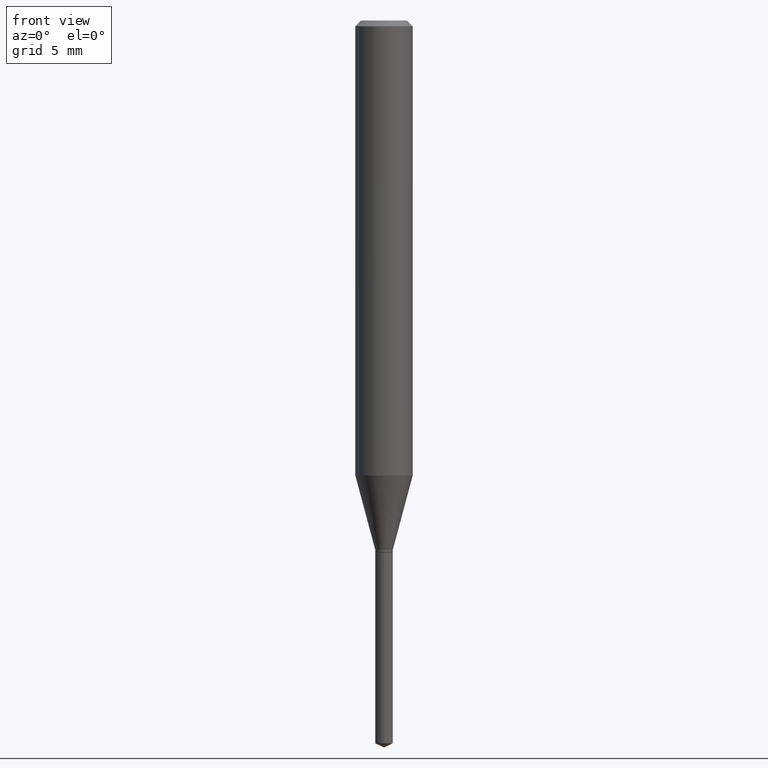
[diagram: clean part render]
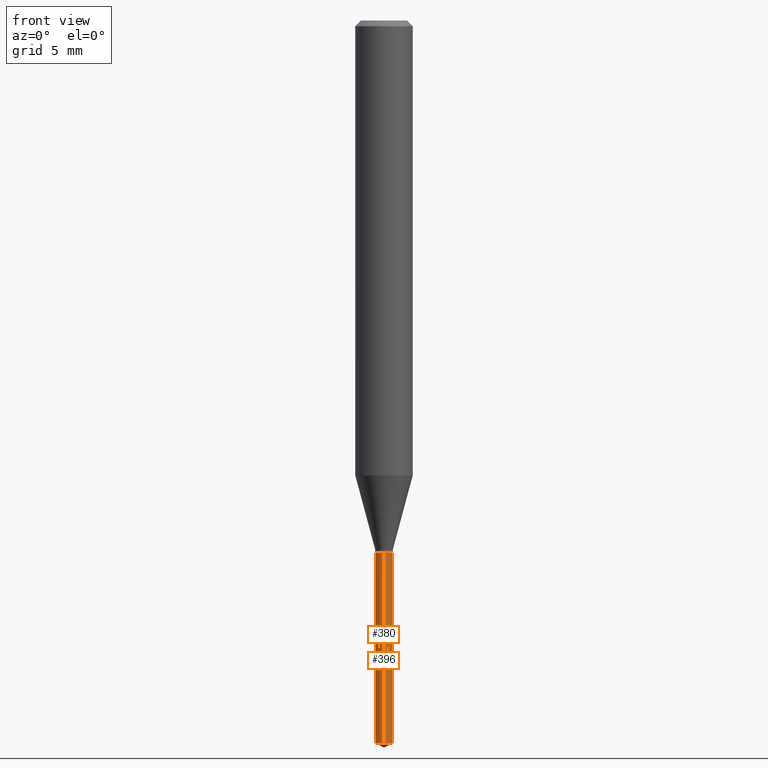
[diagram: same view with one multi-face feature highlighted, each face labeled with its STEP entity id]
A machine part, front view. The highlighted faces form ONE feature: a constant-radius fillet chain: 2 tangent blend faces with common blend radius 0.4597 mm. The faces share edges in the B-rep.
Their STEP definitions:
[1] entity #396 (Cylinder):
#3 = CIRCLE ( 'NONE', #331, 0.01810000000000000150 ) ;
#12 = VERTEX_POINT ( 'NONE', #414 ) ;
#13 = VERTEX_POINT ( 'NONE', #89 ) ;
#21 = ORIENTED_EDGE ( 'NONE', *, *, #409, .F. ) ;
#28 = DIRECTION ( 'NONE',  ( -2.445460715294871217E-29, 3.491492925458510144E-15, 1.000000000000000000 ) ) ;
#44 = VERTEX_POINT ( 'NONE', #366 ) ;
#57 = DIRECTION ( 'NONE',  ( -6.982962677686265922E-15, -1.000000000000000000, 0.000000000000000000 ) ) ;
#67 = AXIS2_PLACEMENT_3D ( 'NONE', #388, #105, #385 ) ;
#70 = DIRECTION ( 'NONE',  ( -2.445460715294871217E-29, 3.491492925458510144E-15, 1.000000000000000000 ) ) ;
#89 = CARTESIAN_POINT ( 'NONE',  ( -1.263916244660946470E-16, -0.01810000000000382483, -1.094499999999999806 ) ) ;
#91 = DIRECTION ( 'NONE',  ( -2.445460715294871217E-29, 3.491492925458510144E-15, 1.000000000000000000 ) ) ;
#105 = DIRECTION ( 'NONE',  ( -2.445460715294871217E-29, 3.491492925458510144E-15, 1.000000000000000000 ) ) ;
#109 = EDGE_CURVE ( 'NONE', #12, #13, #463, .T. ) ;
#130 = ORIENTED_EDGE ( 'NONE', *, *, #109, .F. ) ;
#143 = CARTESIAN_POINT ( 'NONE',  ( 1.286082351726144812E-16, 0.01809999999999480080, -1.487659831387394549 ) ) ;
#147 = EDGE_CURVE ( 'NONE', #12, #217, #364, .T. ) ;
#172 = CYLINDRICAL_SURFACE ( 'NONE', #67, 0.01810000000000000150 ) ;
#173 = FACE_OUTER_BOUND ( 'NONE', #400, .T. ) ;
#174 = AXIS2_PLACEMENT_3D ( 'NONE', #395, #70, #424 ) ;
#177 = CARTESIAN_POINT ( 'NONE',  ( 2.676565608369631794E-29, -3.821426325363822773E-15, -1.094499999999999806 ) ) ;
#217 = VERTEX_POINT ( 'NONE', #143 ) ;
#294 = VECTOR ( 'NONE', #430, 39.37007874015748143 ) ;
#319 = EDGE_CURVE ( 'NONE', #217, #44, #383, .T. ) ;
#331 = AXIS2_PLACEMENT_3D ( 'NONE', #177, #28, #57 ) ;
#364 = CIRCLE ( 'NONE', #174, 0.01810000000000000150 ) ;
#366 = CARTESIAN_POINT ( 'NONE',  ( 1.286082351726145552E-16, 0.01809999999999617817, -1.094499999999999806 ) ) ;
#373 = VECTOR ( 'NONE', #91, 39.37007874015748143 ) ;
#383 = LINE ( 'NONE', #415, #373 ) ;
#385 = DIRECTION ( 'NONE',  ( -6.982962677686265922E-15, -1.000000000000000000, 0.000000000000000000 ) ) ;
#388 = CARTESIAN_POINT ( 'NONE',  ( 2.676565608369631794E-29, -3.821426325363822773E-15, -1.094499999999999806 ) ) ;
#391 = ORIENTED_EDGE ( 'NONE', *, *, #147, .T. ) ;
#395 = CARTESIAN_POINT ( 'NONE',  ( 3.638022530859460971E-29, -5.194141095227371238E-15, -1.487659831387394549 ) ) ;
#396 = ADVANCED_FACE ( 'NONE', ( #173 ), #172, .T. ) ;
#400 = EDGE_LOOP ( 'NONE', ( #391, #425, #21, #130 ) ) ;
#409 = EDGE_CURVE ( 'NONE', #13, #44, #3, .T. ) ;
#414 = CARTESIAN_POINT ( 'NONE',  ( -1.263916244660850081E-16, -0.01810000000000519180, -1.487659831387394549 ) ) ;
#415 = CARTESIAN_POINT ( 'NONE',  ( 1.286082351726048916E-16, 0.01809999999999617817, -1.094499999999999806 ) ) ;
#424 = DIRECTION ( 'NONE',  ( -6.982962677686265922E-15, -1.000000000000000000, 0.000000000000000000 ) ) ;
#425 = ORIENTED_EDGE ( 'NONE', *, *, #319, .T. ) ;
#430 = DIRECTION ( 'NONE',  ( -2.445460715294871217E-29, 3.491492925458510144E-15, 1.000000000000000000 ) ) ;
#453 = CARTESIAN_POINT ( 'NONE',  ( -1.263916244660946470E-16, -0.01810000000000382483, -1.094499999999999806 ) ) ;
#463 = LINE ( 'NONE', #453, #294 ) ;
[2] entity #380 (Cylinder):
#12 = VERTEX_POINT ( 'NONE', #414 ) ;
#13 = VERTEX_POINT ( 'NONE', #89 ) ;
#44 = VERTEX_POINT ( 'NONE', #366 ) ;
#46 = DIRECTION ( 'NONE',  ( -6.982962677686265922E-15, -1.000000000000000000, 0.000000000000000000 ) ) ;
#69 = DIRECTION ( 'NONE',  ( -6.982962677686265922E-15, -1.000000000000000000, 0.000000000000000000 ) ) ;
#89 = CARTESIAN_POINT ( 'NONE',  ( -1.263916244660946470E-16, -0.01810000000000382483, -1.094499999999999806 ) ) ;
#91 = DIRECTION ( 'NONE',  ( -2.445460715294871217E-29, 3.491492925458510144E-15, 1.000000000000000000 ) ) ;
#97 = CIRCLE ( 'NONE', #315, 0.01810000000000000150 ) ;
#101 = DIRECTION ( 'NONE',  ( -6.982962677686265922E-15, -1.000000000000000000, 0.000000000000000000 ) ) ;
#109 = EDGE_CURVE ( 'NONE', #12, #13, #463, .T. ) ;
#136 = ORIENTED_EDGE ( 'NONE', *, *, #109, .T. ) ;
#143 = CARTESIAN_POINT ( 'NONE',  ( 1.286082351726144812E-16, 0.01809999999999480080, -1.487659831387394549 ) ) ;
#153 = CIRCLE ( 'NONE', #253, 0.01810000000000000150 ) ;
#169 = CYLINDRICAL_SURFACE ( 'NONE', #412, 0.01810000000000000150 ) ;
#213 = CARTESIAN_POINT ( 'NONE',  ( 2.676565608369631794E-29, -3.821426325363822773E-15, -1.094499999999999806 ) ) ;
#217 = VERTEX_POINT ( 'NONE', #143 ) ;
#221 = EDGE_LOOP ( 'NONE', ( #458, #397, #136, #338 ) ) ;
#235 = FACE_OUTER_BOUND ( 'NONE', #221, .T. ) ;
#253 = AXIS2_PLACEMENT_3D ( 'NONE', #421, #339, #101 ) ;
#294 = VECTOR ( 'NONE', #430, 39.37007874015748143 ) ;
#299 = EDGE_CURVE ( 'NONE', #44, #13, #153, .T. ) ;
#308 = CARTESIAN_POINT ( 'NONE',  ( 3.638022530859460971E-29, -5.194141095227371238E-15, -1.487659831387394549 ) ) ;
#315 = AXIS2_PLACEMENT_3D ( 'NONE', #308, #467, #46 ) ;
#319 = EDGE_CURVE ( 'NONE', #217, #44, #383, .T. ) ;
#338 = ORIENTED_EDGE ( 'NONE', *, *, #299, .F. ) ;
#339 = DIRECTION ( 'NONE',  ( -2.445460715294871217E-29, 3.491492925458510144E-15, 1.000000000000000000 ) ) ;
#363 = EDGE_CURVE ( 'NONE', #217, #12, #97, .T. ) ;
#366 = CARTESIAN_POINT ( 'NONE',  ( 1.286082351726145552E-16, 0.01809999999999617817, -1.094499999999999806 ) ) ;
#373 = VECTOR ( 'NONE', #91, 39.37007874015748143 ) ;
#380 = ADVANCED_FACE ( 'NONE', ( #235 ), #169, .T. ) ;
#383 = LINE ( 'NONE', #415, #373 ) ;
#397 = ORIENTED_EDGE ( 'NONE', *, *, #363, .T. ) ;
#412 = AXIS2_PLACEMENT_3D ( 'NONE', #213, #478, #69 ) ;
#414 = CARTESIAN_POINT ( 'NONE',  ( -1.263916244660850081E-16, -0.01810000000000519180, -1.487659831387394549 ) ) ;
#415 = CARTESIAN_POINT ( 'NONE',  ( 1.286082351726048916E-16, 0.01809999999999617817, -1.094499999999999806 ) ) ;
#421 = CARTESIAN_POINT ( 'NONE',  ( 2.676565608369631794E-29, -3.821426325363822773E-15, -1.094499999999999806 ) ) ;
#430 = DIRECTION ( 'NONE',  ( -2.445460715294871217E-29, 3.491492925458510144E-15, 1.000000000000000000 ) ) ;
#453 = CARTESIAN_POINT ( 'NONE',  ( -1.263916244660946470E-16, -0.01810000000000382483, -1.094499999999999806 ) ) ;
#458 = ORIENTED_EDGE ( 'NONE', *, *, #319, .F. ) ;
#463 = LINE ( 'NONE', #453, #294 ) ;
#467 = DIRECTION ( 'NONE',  ( -2.445460715294871217E-29, 3.491492925458510144E-15, 1.000000000000000000 ) ) ;
#478 = DIRECTION ( 'NONE',  ( -2.445460715294871217E-29, 3.491492925458510144E-15, 1.000000000000000000 ) ) ;